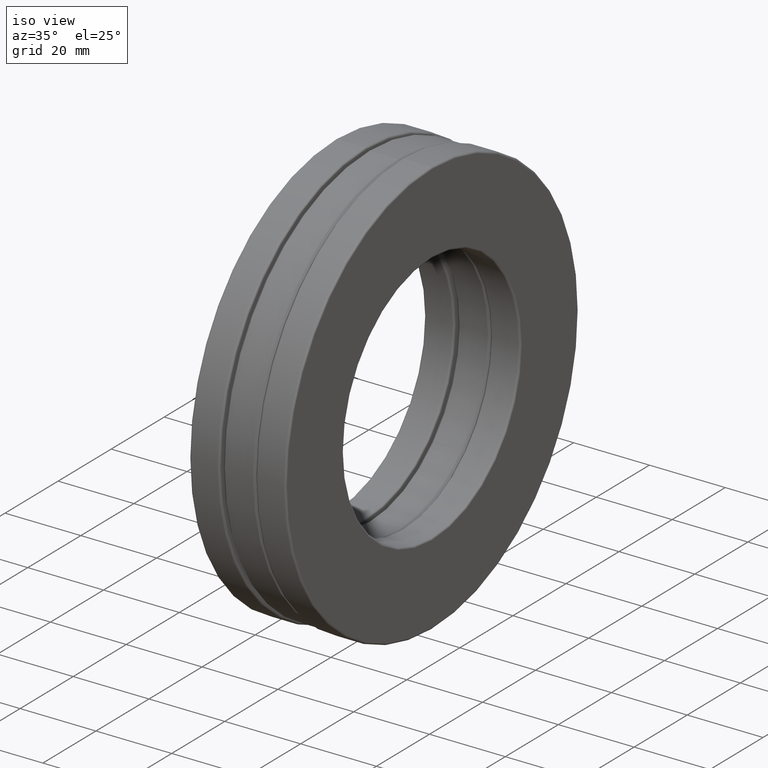
[diagram: clean part render]
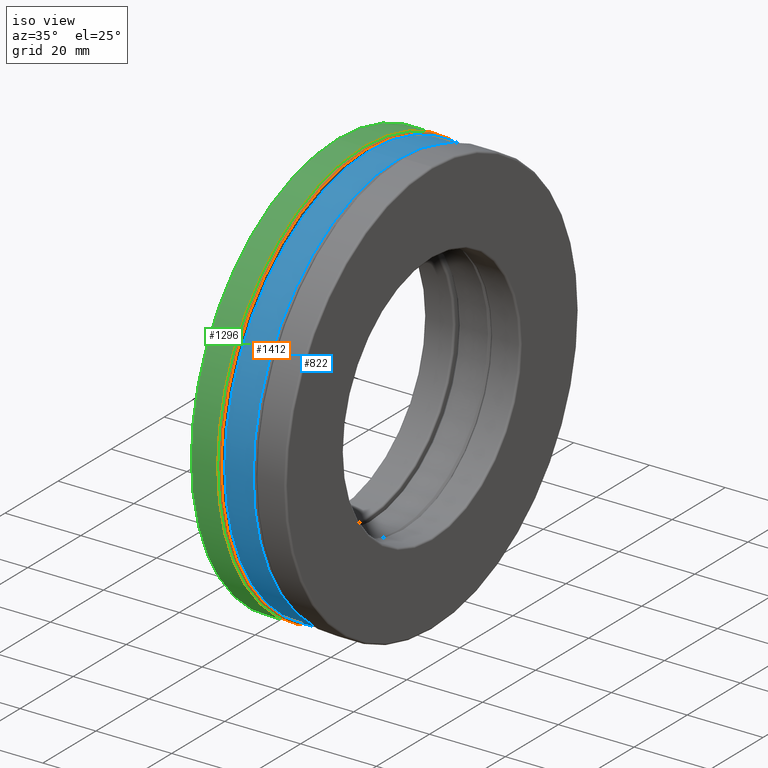
[diagram: same view with three faces highlighted in distinct colors, each labeled with its STEP entity id]
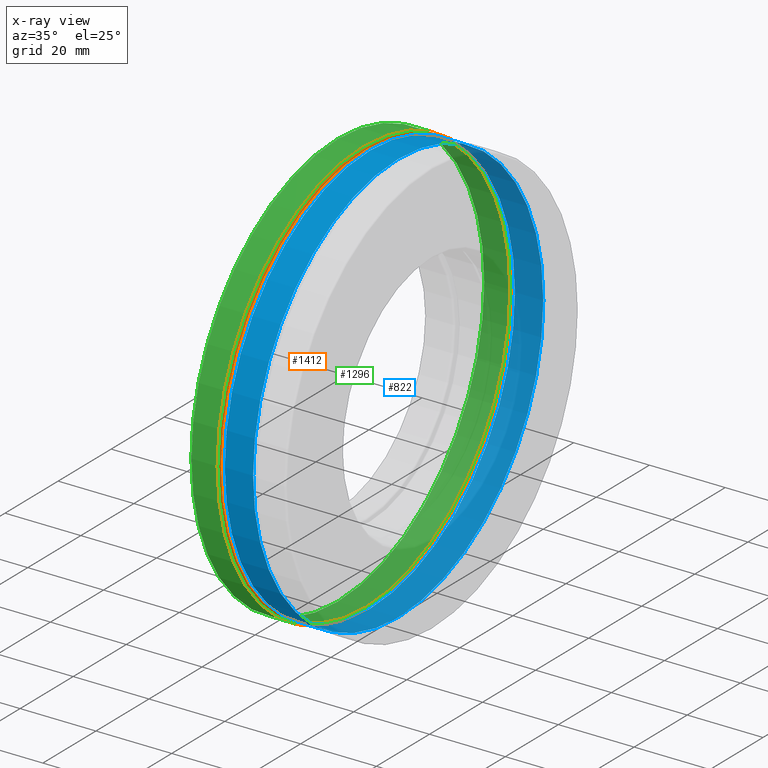
[diagram: x-ray of the same camera — body ghosted, the three highlighted faces saturated]
A machine part, iso view with three faces highlighted in distinct colors.
The next image is the same camera in x-ray (body ghosted, the three faces saturated) — at least one of them is partly hidden behind the body in this view.
Their STEP definitions:

[orange] entity #1412 — the highlighted toroidal blend (fillet) surface has major radius 54.6576 mm and minor (blend) radius 0.508 mm.
#21 = DIRECTION ( 'NONE',  ( 0.0000000000000000000, 0.0000000000000000000, 1.000000000000000000 ) ) ;
#33 = TOROIDAL_SURFACE ( 'NONE', #1007, 2.151875000000000000, 0.02000000000000004200 ) ;
#34 = ORIENTED_EDGE ( 'NONE', *, *, #1205, .T. ) ;
#80 = DIRECTION ( 'NONE',  ( -1.000000000000000000, -0.0000000000000000000, -0.0000000000000000000 ) ) ;
#218 = CIRCLE ( 'NONE', #609, 2.151875000000000000 ) ;
#278 = CARTESIAN_POINT ( 'NONE',  ( -0.2075000000000000200, 0.0000000000000000000, 2.171875000000000000 ) ) ;
#316 = CARTESIAN_POINT ( 'NONE',  ( -0.2075000000000000200, 0.0000000000000000000, 0.0000000000000000000 ) ) ;
#345 = FACE_OUTER_BOUND ( 'NONE', #904, .T. ) ;
#399 = VERTEX_POINT ( 'NONE', #1376 ) ;
#502 = FACE_OUTER_BOUND ( 'NONE', #935, .T. ) ;
#609 = AXIS2_PLACEMENT_3D ( 'NONE', #823, #1391, #21 ) ;
#694 = ORIENTED_EDGE ( 'NONE', *, *, #1115, .F. ) ;
#823 = CARTESIAN_POINT ( 'NONE',  ( -0.1874999999999999700, 0.0000000000000000000, 0.0000000000000000000 ) ) ;
#904 = EDGE_LOOP ( 'NONE', ( #34 ) ) ;
#935 = EDGE_LOOP ( 'NONE', ( #694 ) ) ;
#1007 = AXIS2_PLACEMENT_3D ( 'NONE', #316, #80, #1110 ) ;
#1110 = DIRECTION ( 'NONE',  ( 0.0000000000000000000, 0.0000000000000000000, 1.000000000000000000 ) ) ;
#1115 = EDGE_CURVE ( 'NONE', #1467, #1467, #1142, .T. ) ;
#1130 = CARTESIAN_POINT ( 'NONE',  ( -0.2075000000000000200, 0.0000000000000000000, 0.0000000000000000000 ) ) ;
#1142 = CIRCLE ( 'NONE', #1417, 2.171875000000000000 ) ;
#1205 = EDGE_CURVE ( 'NONE', #399, #399, #218, .T. ) ;
#1241 = DIRECTION ( 'NONE',  ( 0.0000000000000000000, 0.0000000000000000000, 1.000000000000000000 ) ) ;
#1376 = CARTESIAN_POINT ( 'NONE',  ( -0.1874999999999999700, 0.0000000000000000000, 2.151875000000000000 ) ) ;
#1391 = DIRECTION ( 'NONE',  ( -1.000000000000000000, -0.0000000000000000000, -0.0000000000000000000 ) ) ;
#1412 = ADVANCED_FACE ( 'NONE', ( #502, #345 ), #33, .T. ) ;
#1417 = AXIS2_PLACEMENT_3D ( 'NONE', #1130, #1466, #1241 ) ;
#1466 = DIRECTION ( 'NONE',  ( -1.000000000000000000, -0.0000000000000000000, -0.0000000000000000000 ) ) ;
#1467 = VERTEX_POINT ( 'NONE', #278 ) ;

[blue] entity #822 — the highlighted cylindrical surface (bore or boss wall) has radius 54.6576 mm, axis along (-1, -0, -0).
#115 = CARTESIAN_POINT ( 'NONE',  ( -0.1475000000000001000, 0.0000000000000000000, 0.0000000000000000000 ) ) ;
#196 = VERTEX_POINT ( 'NONE', #675 ) ;
#247 = EDGE_CURVE ( 'NONE', #196, #196, #1176, .T. ) ;
#256 = ORIENTED_EDGE ( 'NONE', *, *, #247, .F. ) ;
#292 = DIRECTION ( 'NONE',  ( -1.000000000000000000, -0.0000000000000000000, -0.0000000000000000000 ) ) ;
#341 = DIRECTION ( 'NONE',  ( 0.0000000000000000000, 0.0000000000000000000, 1.000000000000000000 ) ) ;
#534 = FACE_OUTER_BOUND ( 'NONE', #642, .T. ) ;
#624 = AXIS2_PLACEMENT_3D ( 'NONE', #115, #892, #341 ) ;
#625 = CIRCLE ( 'NONE', #1238, 2.151874999999999500 ) ;
#642 = EDGE_LOOP ( 'NONE', ( #256 ) ) ;
#675 = CARTESIAN_POINT ( 'NONE',  ( -0.1475000000000001000, 0.0000000000000000000, 2.151874999999999500 ) ) ;
#748 = CARTESIAN_POINT ( 'NONE',  ( 0.0000000000000000000, 0.0000000000000000000, 0.0000000000000000000 ) ) ;
#763 = CARTESIAN_POINT ( 'NONE',  ( 0.1475000000000000200, 0.0000000000000000000, 2.151874999999999500 ) ) ;
#772 = CARTESIAN_POINT ( 'NONE',  ( 0.1475000000000000200, 0.0000000000000000000, 0.0000000000000000000 ) ) ;
#822 = ADVANCED_FACE ( 'NONE', ( #1341, #534 ), #1041, .T. ) ;
#840 = VERTEX_POINT ( 'NONE', #763 ) ;
#856 = DIRECTION ( 'NONE',  ( 0.0000000000000000000, 0.0000000000000000000, 1.000000000000000000 ) ) ;
#892 = DIRECTION ( 'NONE',  ( -1.000000000000000000, -0.0000000000000000000, -0.0000000000000000000 ) ) ;
#943 = EDGE_CURVE ( 'NONE', #840, #840, #625, .T. ) ;
#956 = AXIS2_PLACEMENT_3D ( 'NONE', #748, #292, #856 ) ;
#1041 = CYLINDRICAL_SURFACE ( 'NONE', #956, 2.151874999999999500 ) ;
#1089 = DIRECTION ( 'NONE',  ( 0.0000000000000000000, 0.0000000000000000000, 1.000000000000000000 ) ) ;
#1097 = DIRECTION ( 'NONE',  ( -1.000000000000000000, -0.0000000000000000000, -0.0000000000000000000 ) ) ;
#1176 = CIRCLE ( 'NONE', #624, 2.151874999999999500 ) ;
#1225 = EDGE_LOOP ( 'NONE', ( #1365 ) ) ;
#1238 = AXIS2_PLACEMENT_3D ( 'NONE', #772, #1097, #1089 ) ;
#1341 = FACE_OUTER_BOUND ( 'NONE', #1225, .T. ) ;
#1365 = ORIENTED_EDGE ( 'NONE', *, *, #943, .T. ) ;

[green] entity #1296 — the highlighted cylindrical surface (bore or boss wall) has radius 55.1656 mm, axis along (-1, -0, -0).
#63 = DIRECTION ( 'NONE',  ( -1.000000000000000000, -0.0000000000000000000, -0.0000000000000000000 ) ) ;
#278 = CARTESIAN_POINT ( 'NONE',  ( -0.2075000000000000200, 0.0000000000000000000, 2.171875000000000000 ) ) ;
#550 = EDGE_LOOP ( 'NONE', ( #1143 ) ) ;
#572 = EDGE_LOOP ( 'NONE', ( #1421 ) ) ;
#601 = FACE_OUTER_BOUND ( 'NONE', #572, .T. ) ;
#613 = CARTESIAN_POINT ( 'NONE',  ( 0.0000000000000000000, 0.0000000000000000000, 0.0000000000000000000 ) ) ;
#651 = CARTESIAN_POINT ( 'NONE',  ( -0.4800000000000000900, 0.0000000000000000000, 2.171875000000000000 ) ) ;
#719 = VERTEX_POINT ( 'NONE', #651 ) ;
#724 = DIRECTION ( 'NONE',  ( -1.000000000000000000, -0.0000000000000000000, -0.0000000000000000000 ) ) ;
#730 = DIRECTION ( 'NONE',  ( 0.0000000000000000000, 0.0000000000000000000, 1.000000000000000000 ) ) ;
#799 = EDGE_CURVE ( 'NONE', #719, #719, #1209, .T. ) ;
#853 = AXIS2_PLACEMENT_3D ( 'NONE', #613, #724, #1397 ) ;
#1067 = CYLINDRICAL_SURFACE ( 'NONE', #853, 2.171875000000000000 ) ;
#1115 = EDGE_CURVE ( 'NONE', #1467, #1467, #1142, .T. ) ;
#1130 = CARTESIAN_POINT ( 'NONE',  ( -0.2075000000000000200, 0.0000000000000000000, 0.0000000000000000000 ) ) ;
#1142 = CIRCLE ( 'NONE', #1417, 2.171875000000000000 ) ;
#1143 = ORIENTED_EDGE ( 'NONE', *, *, #1115, .T. ) ;
#1209 = CIRCLE ( 'NONE', #1449, 2.171875000000000000 ) ;
#1241 = DIRECTION ( 'NONE',  ( 0.0000000000000000000, 0.0000000000000000000, 1.000000000000000000 ) ) ;
#1296 = ADVANCED_FACE ( 'NONE', ( #601, #1316 ), #1067, .T. ) ;
#1316 = FACE_OUTER_BOUND ( 'NONE', #550, .T. ) ;
#1397 = DIRECTION ( 'NONE',  ( 0.0000000000000000000, 0.0000000000000000000, 1.000000000000000000 ) ) ;
#1409 = CARTESIAN_POINT ( 'NONE',  ( -0.4800000000000000900, 0.0000000000000000000, 0.0000000000000000000 ) ) ;
#1417 = AXIS2_PLACEMENT_3D ( 'NONE', #1130, #1466, #1241 ) ;
#1421 = ORIENTED_EDGE ( 'NONE', *, *, #799, .F. ) ;
#1449 = AXIS2_PLACEMENT_3D ( 'NONE', #1409, #63, #730 ) ;
#1466 = DIRECTION ( 'NONE',  ( -1.000000000000000000, -0.0000000000000000000, -0.0000000000000000000 ) ) ;
#1467 = VERTEX_POINT ( 'NONE', #278 ) ;